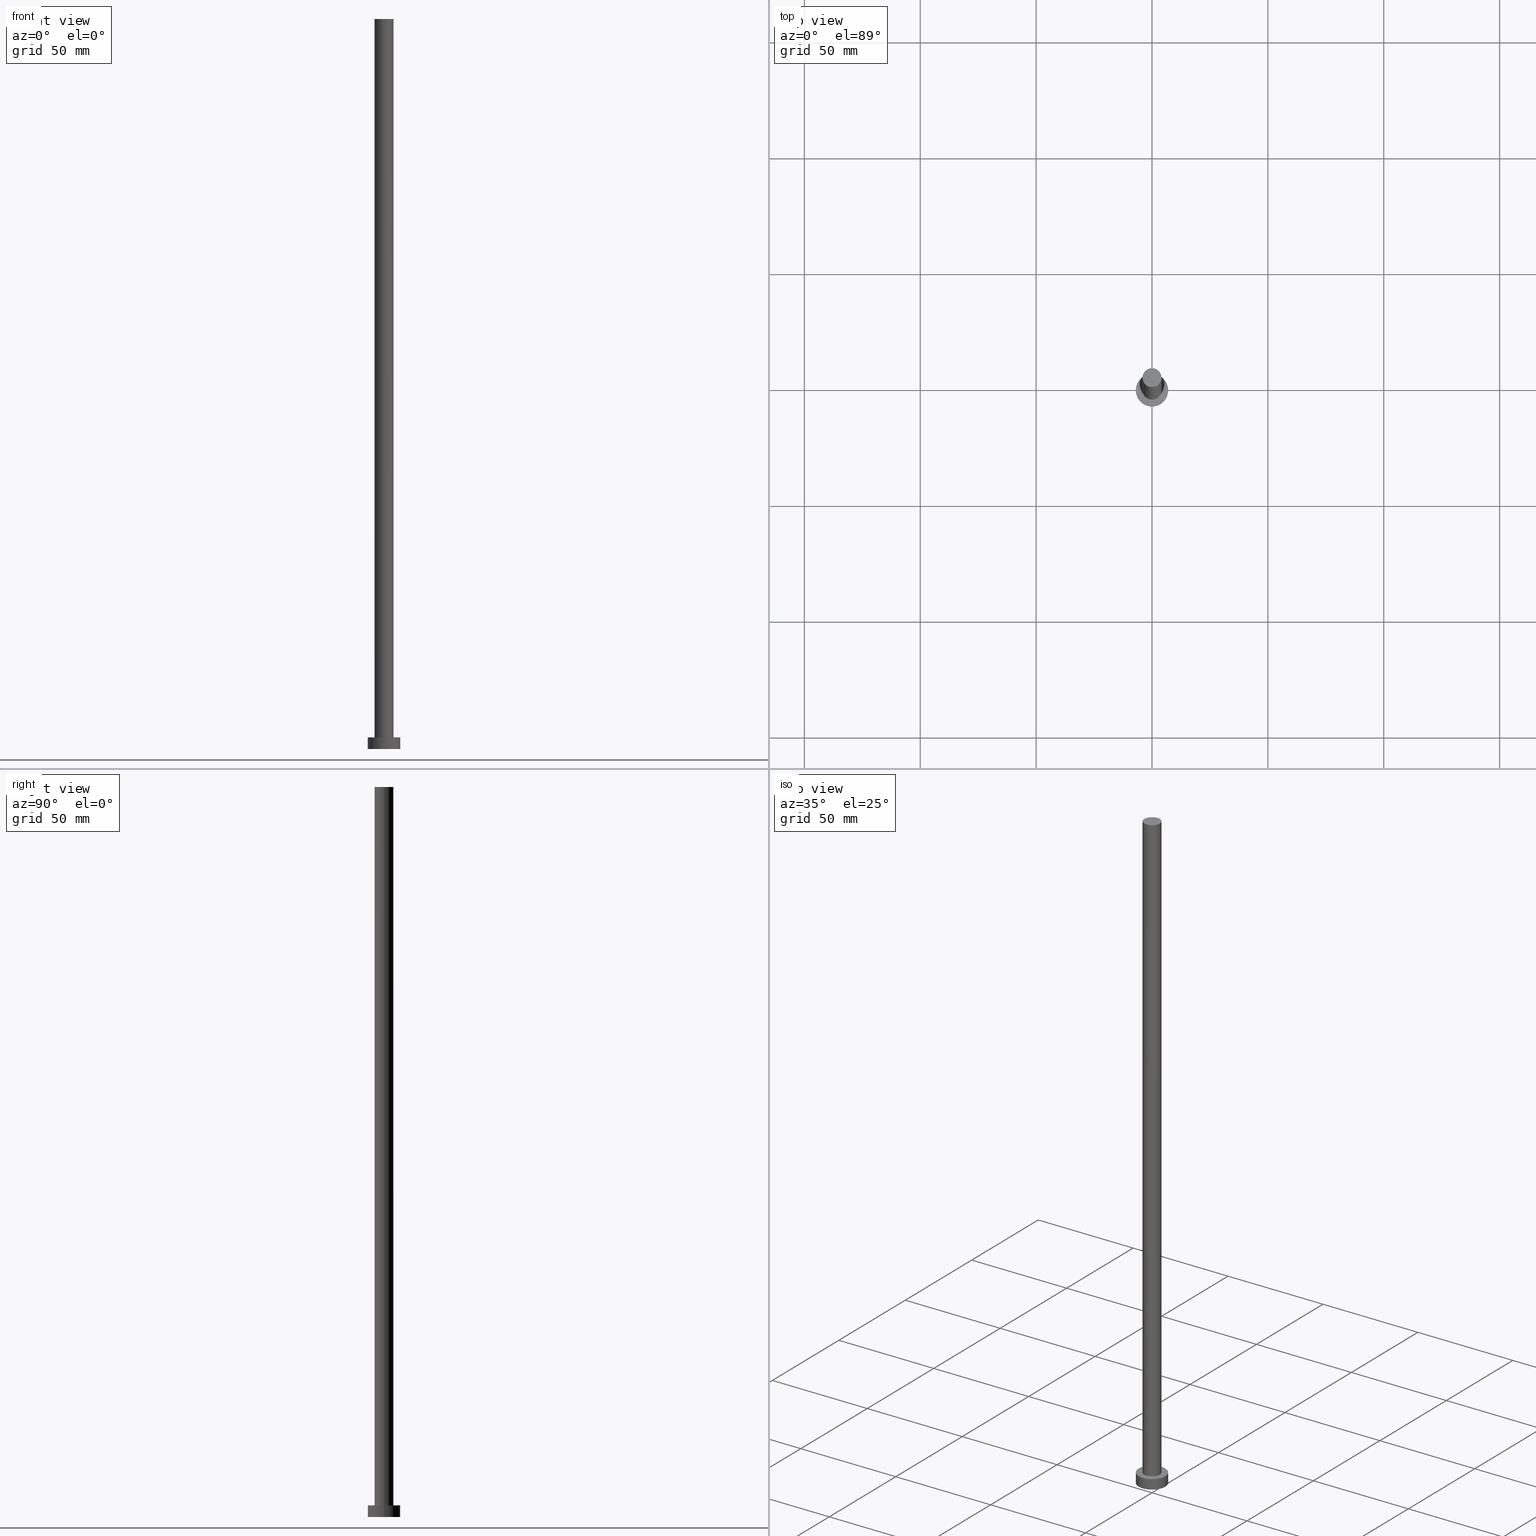
[diagram: canonical four-view strip — front | top / right | iso, engineering-drawing reading convention]
A machine part, canonical four-view strip (front | top / right | iso — engineering-drawing reading convention). The complete STEP part file that produces these views, byte-faithful:
ISO-10303-21;
HEADER;
FILE_DESCRIPTION (( 'STEP AP203' ),
    '1' );
FILE_NAME ('3f20.STEP',
    '2023-02-12T11:45:56',
    ( '' ),
    ( '' ),
    'SwSTEP 2.0',
    'SolidWorks 2019',
    '' );
FILE_SCHEMA (( 'CONFIG_CONTROL_DESIGN' ));
ENDSEC;

DATA;
#1 = AXIS2_PLACEMENT_3D ( 'NONE', #59, #176, #174 ) ;
#2 = CARTESIAN_POINT ( 'NONE',  ( 7.000000000000000000, 8.572527594031473190E-16, 5.000000000000000000 ) ) ;
#3 = EDGE_CURVE ( 'NONE', #99, #74, #75, .T. ) ;
#4 = DIRECTION ( 'NONE',  ( 0.000000000000000000, 0.000000000000000000, 1.000000000000000000 ) ) ;
#5 = DIRECTION ( 'NONE',  ( 0.000000000000000000, 0.000000000000000000, 1.000000000000000000 ) ) ;
#6 = EDGE_LOOP ( 'NONE', ( #195, #139 ) ) ;
#7 = ADVANCED_FACE ( 'NONE', ( #37 ), #94, .T. ) ;
#8 = CARTESIAN_POINT ( 'NONE',  ( 7.000000000000000000, 8.572527594031473190E-16, 0.000000000000000000 ) ) ;
#9 = CARTESIAN_POINT ( 'NONE',  ( 0.000000000000000000, 0.000000000000000000, 0.000000000000000000 ) ) ;
#10 = VERTEX_POINT ( 'NONE', #194 ) ;
#11 = DATE_TIME_ROLE ( 'creation_date' ) ;
#12 = ORIENTED_EDGE ( 'NONE', *, *, #125, .F. ) ;
#13 = DATE_AND_TIME ( #185, #17 ) ;
#14 = FACE_OUTER_BOUND ( 'NONE', #253, .T. ) ;
#15 = ADVANCED_FACE ( 'NONE', ( #212 ), #168, .T. ) ;
#16 = ORIENTED_EDGE ( 'NONE', *, *, #3, .T. ) ;
#17 = LOCAL_TIME ( 12, 45, 56.00000000000000000, #252 ) ;
#18 = DIRECTION ( 'NONE',  ( -0.000000000000000000, -0.000000000000000000, -1.000000000000000000 ) ) ;
#19 = ADVANCED_FACE ( 'NONE', ( #14 ), #32, .T. ) ;
#20 = ORIENTED_EDGE ( 'NONE', *, *, #101, .F. ) ;
#21 = CARTESIAN_POINT ( 'NONE',  ( 4.099999999999999645, 5.021051876504147385E-16, 5.000000000000000000 ) ) ;
#22 = CIRCLE ( 'NONE', #77, 4.099999999999999645 ) ;
#23 = DIRECTION ( 'NONE',  ( 1.000000000000000000, 0.000000000000000000, 0.000000000000000000 ) ) ;
#24 = APPROVAL_PERSON_ORGANIZATION ( #246, #152, #31 ) ;
#25 = CARTESIAN_POINT ( 'NONE',  ( 0.000000000000000000, 0.000000000000000000, 0.000000000000000000 ) ) ;
#26 = PLANE ( 'NONE',  #92 ) ;
#27 = CARTESIAN_POINT ( 'NONE',  ( 0.000000000000000000, 0.000000000000000000, 5.000000000000000000 ) ) ;
#28 = AXIS2_PLACEMENT_3D ( 'NONE', #25, #202, #97 ) ;
#29 = ORIENTED_EDGE ( 'NONE', *, *, #114, .T. ) ;
#30 = APPROVAL_DATE_TIME ( #71, #218 ) ;
#31 = APPROVAL_ROLE ( '' ) ;
#32 = CYLINDRICAL_SURFACE ( 'NONE', #204, 4.099999999999999645 ) ;
#33 = CC_DESIGN_APPROVAL ( #218, ( #170 ) ) ;
#34 = PERSON_AND_ORGANIZATION_ROLE ( 'creator' ) ;
#35 = ORIENTED_EDGE ( 'NONE', *, *, #112, .F. ) ;
#36 = EDGE_CURVE ( 'NONE', #67, #99, #22, .T. ) ;
#37 = FACE_OUTER_BOUND ( 'NONE', #104, .T. ) ;
#38 = AXIS2_PLACEMENT_3D ( 'NONE', #230, #107, #48 ) ;
#39 = ADVANCED_FACE ( 'NONE', ( #96 ), #84, .T. ) ;
#40 =( NAMED_UNIT ( * ) PLANE_ANGLE_UNIT ( ) SI_UNIT ( $, .RADIAN. ) );
#41 = DIRECTION ( 'NONE',  ( 0.000000000000000000, 0.000000000000000000, 1.000000000000000000 ) ) ;
#42 = LINE ( 'NONE', #172, #187 ) ;
#43 = FACE_BOUND ( 'NONE', #210, .T. ) ;
#44 = CARTESIAN_POINT ( 'NONE',  ( 0.000000000000000000, 0.000000000000000000, 5.000000000000000000 ) ) ;
#45 = ORIENTED_EDGE ( 'NONE', *, *, #146, .T. ) ;
#46 = AXIS2_PLACEMENT_3D ( 'NONE', #102, #155, #23 ) ;
#47 = CC_DESIGN_DATE_AND_TIME_ASSIGNMENT ( #209, #160, ( #103 ) ) ;
#48 = DIRECTION ( 'NONE',  ( 1.000000000000000000, 0.000000000000000000, 0.000000000000000000 ) ) ;
#49 = EDGE_LOOP ( 'NONE', ( #188, #45 ) ) ;
#50 = PERSON_AND_ORGANIZATION ( #56, #251 ) ;
#51 = CARTESIAN_POINT ( 'NONE',  ( 0.000000000000000000, 0.000000000000000000, 5.000000000000000000 ) ) ;
#52 = APPROVAL_ROLE ( '' ) ;
#53 = CIRCLE ( 'NONE', #196, 7.000000000000000000 ) ;
#54 = LOCAL_TIME ( 12, 45, 56.00000000000000000, #108 ) ;
#55 = CALENDAR_DATE ( 2023, 12, 2 ) ;
#56 = PERSON ( 'NEUR�EN�', 'NEUR�EN�', 'NEUR�EN�', ('NEUR�EN�'), ('NEUR�EN�'), ('NEUR�EN�') ) ;
#57 = DIRECTION ( 'NONE',  ( 1.000000000000000000, 0.000000000000000000, 0.000000000000000000 ) ) ;
#58 = PRODUCT ( '3f20', '3f20', '', ( #70 ) ) ;
#59 = CARTESIAN_POINT ( 'NONE',  ( 0.000000000000000000, 0.000000000000000000, 5.000000000000000000 ) ) ;
#60 = ADVANCED_FACE ( 'NONE', ( #78 ), #81, .F. ) ;
#61 = DIRECTION ( 'NONE',  ( 1.000000000000000000, 0.000000000000000000, 0.000000000000000000 ) ) ;
#62 = CYLINDRICAL_SURFACE ( 'NONE', #73, 7.000000000000000000 ) ;
#63 = CC_DESIGN_APPROVAL ( #152, ( #169 ) ) ;
#64 = ORIENTED_EDGE ( 'NONE', *, *, #3, .F. ) ;
#65 = CALENDAR_DATE ( 2023, 12, 2 ) ;
#66 =( NAMED_UNIT ( * ) SI_UNIT ( $, .STERADIAN. ) SOLID_ANGLE_UNIT ( ) );
#67 = VERTEX_POINT ( 'NONE', #135 ) ;
#68 = AXIS2_PLACEMENT_3D ( 'NONE', #224, #5, #154 ) ;
#69 = PERSON_AND_ORGANIZATION_ROLE ( 'design_owner' ) ;
#70 = MECHANICAL_CONTEXT ( 'NONE', #159, 'mechanical' ) ;
#71 = DATE_AND_TIME ( #111, #178 ) ;
#72 = DIRECTION ( 'NONE',  ( 0.000000000000000000, 0.000000000000000000, 1.000000000000000000 ) ) ;
#73 = AXIS2_PLACEMENT_3D ( 'NONE', #150, #179, #243 ) ;
#74 = VERTEX_POINT ( 'NONE', #21 ) ;
#75 = LINE ( 'NONE', #148, #213 ) ;
#76 = CIRCLE ( 'NONE', #245, 4.099999999999999645 ) ;
#77 = AXIS2_PLACEMENT_3D ( 'NONE', #255, #72, #57 ) ;
#78 = FACE_OUTER_BOUND ( 'NONE', #6, .T. ) ;
#79 = CIRCLE ( 'NONE', #46, 4.099999999999999645 ) ;
#80 = DIRECTION ( 'NONE',  ( -0.000000000000000000, -0.000000000000000000, -1.000000000000000000 ) ) ;
#81 = PLANE ( 'NONE',  #238 ) ;
#82 = ORIENTED_EDGE ( 'NONE', *, *, #217, .F. ) ;
#83 = CIRCLE ( 'NONE', #1, 7.000000000000000000 ) ;
#84 = PLANE ( 'NONE',  #151 ) ;
#85 = COORDINATED_UNIVERSAL_TIME_OFFSET ( 1, 0, .AHEAD. ) ;
#86 = APPLICATION_PROTOCOL_DEFINITION ( 'international standard', 'config_control_design', 1994, #199 ) ;
#87 = ORIENTED_EDGE ( 'NONE', *, *, #106, .T. ) ;
#88 = APPROVAL_DATE_TIME ( #13, #250 ) ;
#89 = VECTOR ( 'NONE', #222, 1000.000000000000000 ) ;
#90 = EDGE_CURVE ( 'NONE', #167, #231, #219, .T. ) ;
#91 = COORDINATED_UNIVERSAL_TIME_OFFSET ( 1, 0, .AHEAD. ) ;
#92 = AXIS2_PLACEMENT_3D ( 'NONE', #44, #100, #157 ) ;
#93 = CC_DESIGN_PERSON_AND_ORGANIZATION_ASSIGNMENT ( #216, #191, ( #103 ) ) ;
#94 = CYLINDRICAL_SURFACE ( 'NONE', #113, 7.000000000000000000 ) ;
#95 = MANIFOLD_SOLID_BREP ( 'P�idat vysunut�m3', #248 ) ;
#96 = FACE_OUTER_BOUND ( 'NONE', #49, .T. ) ;
#97 = DIRECTION ( 'NONE',  ( 1.000000000000000000, 0.000000000000000000, 0.000000000000000000 ) ) ;
#98 = CARTESIAN_POINT ( 'NONE',  ( 4.099999999999999645, 5.021051876504147385E-16, 315.0000000000000000 ) ) ;
#99 = VERTEX_POINT ( 'NONE', #98 ) ;
#100 = DIRECTION ( 'NONE',  ( 0.000000000000000000, 0.000000000000000000, 1.000000000000000000 ) ) ;
#101 = EDGE_CURVE ( 'NONE', #225, #231, #220, .T. ) ;
#102 = CARTESIAN_POINT ( 'NONE',  ( 0.000000000000000000, 0.000000000000000000, 5.000000000000000000 ) ) ;
#103 = SECURITY_CLASSIFICATION ( '', '', #189 ) ;
#104 = EDGE_LOOP ( 'NONE', ( #20, #35, #181, #161 ) ) ;
#105 = APPROVAL_ROLE ( '' ) ;
#106 = EDGE_CURVE ( 'NONE', #74, #10, #76, .T. ) ;
#107 = DIRECTION ( 'NONE',  ( 0.000000000000000000, 0.000000000000000000, 1.000000000000000000 ) ) ;
#108 = COORDINATED_UNIVERSAL_TIME_OFFSET ( 1, 0, .AHEAD. ) ;
#109 = DIRECTION ( 'NONE',  ( -0.000000000000000000, -0.000000000000000000, -1.000000000000000000 ) ) ;
#110 = UNCERTAINTY_MEASURE_WITH_UNIT (LENGTH_MEASURE( 1.000000000000000082E-05 ), #239, 'distance_accuracy_value', 'NONE');
#111 = CALENDAR_DATE ( 2023, 12, 2 ) ;
#112 = EDGE_CURVE ( 'NONE', #175, #225, #53, .T. ) ;
#113 = AXIS2_PLACEMENT_3D ( 'NONE', #51, #109, #126 ) ;
#114 = EDGE_CURVE ( 'NONE', #225, #175, #83, .T. ) ;
#115 = DIRECTION ( 'NONE',  ( 1.000000000000000000, 0.000000000000000000, -0.000000000000000000 ) ) ;
#116 = DIRECTION ( 'NONE',  ( -0.000000000000000000, -0.000000000000000000, -1.000000000000000000 ) ) ;
#117 = DIRECTION ( 'NONE',  ( 1.000000000000000000, 0.000000000000000000, 0.000000000000000000 ) ) ;
#118 = FACE_OUTER_BOUND ( 'NONE', #141, .T. ) ;
#119 = LINE ( 'NONE', #133, #89 ) ;
#120 = EDGE_LOOP ( 'NONE', ( #249, #186, #164, #82 ) ) ;
#121 = APPROVAL_STATUS ( 'not_yet_approved' ) ;
#122 = APPROVAL_PERSON_ORGANIZATION ( #226, #250, #105 ) ;
#123 = CC_DESIGN_SECURITY_CLASSIFICATION ( #103, ( #169 ) ) ;
#124 = APPROVAL_DATE_TIME ( #207, #152 ) ;
#125 = EDGE_CURVE ( 'NONE', #10, #74, #79, .T. ) ;
#126 = DIRECTION ( 'NONE',  ( -1.000000000000000000, 0.000000000000000000, 0.000000000000000000 ) ) ;
#127 = DIRECTION ( 'NONE',  ( -1.000000000000000000, 0.000000000000000000, 0.000000000000000000 ) ) ;
#128 = DATE_AND_TIME ( #55, #54 ) ;
#129 = CC_DESIGN_PERSON_AND_ORGANIZATION_ASSIGNMENT ( #214, #235, ( #170 ) ) ;
#130 = AXIS2_PLACEMENT_3D ( 'NONE', #165, #18, #127 ) ;
#131 =( GEOMETRIC_REPRESENTATION_CONTEXT ( 3 ) GLOBAL_UNCERTAINTY_ASSIGNED_CONTEXT ( ( #110 ) ) GLOBAL_UNIT_ASSIGNED_CONTEXT ( ( #239, #40, #66 ) ) REPRESENTATION_CONTEXT ( 'NONE', 'WORKASPACE' ) );
#132 = PRODUCT_RELATED_PRODUCT_CATEGORY ( 'detail', '', ( #58 ) ) ;
#133 = CARTESIAN_POINT ( 'NONE',  ( -7.000000000000000000, 0.000000000000000000, 5.000000000000000000 ) ) ;
#134 = EDGE_CURVE ( 'NONE', #67, #10, #42, .T. ) ;
#135 = CARTESIAN_POINT ( 'NONE',  ( -4.099999999999999645, 0.000000000000000000, 315.0000000000000000 ) ) ;
#136 = CARTESIAN_POINT ( 'NONE',  ( -7.000000000000000000, 0.000000000000000000, 0.000000000000000000 ) ) ;
#137 = APPROVAL_PERSON_ORGANIZATION ( #247, #218, #52 ) ;
#138 = DIRECTION ( 'NONE',  ( 0.000000000000000000, 0.000000000000000000, 1.000000000000000000 ) ) ;
#139 = ORIENTED_EDGE ( 'NONE', *, *, #183, .F. ) ;
#140 = DIRECTION ( 'NONE',  ( 0.000000000000000000, 0.000000000000000000, 1.000000000000000000 ) ) ;
#141 = EDGE_LOOP ( 'NONE', ( #223, #29 ) ) ;
#142 = CALENDAR_DATE ( 2023, 12, 2 ) ;
#143 = APPROVAL_STATUS ( 'not_yet_approved' ) ;
#144 = ORIENTED_EDGE ( 'NONE', *, *, #106, .F. ) ;
#145 = DIRECTION ( 'NONE',  ( -0.000000000000000000, -0.000000000000000000, -1.000000000000000000 ) ) ;
#146 = EDGE_CURVE ( 'NONE', #99, #67, #147, .T. ) ;
#147 = CIRCLE ( 'NONE', #68, 4.099999999999999645 ) ;
#148 = CARTESIAN_POINT ( 'NONE',  ( 4.099999999999999645, 5.021051876504147385E-16, 315.0000000000000000 ) ) ;
#149 = ADVANCED_FACE ( 'NONE', ( #244 ), #62, .T. ) ;
#150 = CARTESIAN_POINT ( 'NONE',  ( 0.000000000000000000, 0.000000000000000000, 5.000000000000000000 ) ) ;
#151 = AXIS2_PLACEMENT_3D ( 'NONE', #171, #4, #198 ) ;
#152 = APPROVAL ( #143, 'NEUR�EN�' ) ;
#153 = DIRECTION ( 'NONE',  ( 1.000000000000000000, 0.000000000000000000, 0.000000000000000000 ) ) ;
#154 = DIRECTION ( 'NONE',  ( 1.000000000000000000, 0.000000000000000000, 0.000000000000000000 ) ) ;
#155 = DIRECTION ( 'NONE',  ( 0.000000000000000000, 0.000000000000000000, 1.000000000000000000 ) ) ;
#156 = EDGE_LOOP ( 'NONE', ( #177, #16, #87, #208 ) ) ;
#157 = DIRECTION ( 'NONE',  ( 1.000000000000000000, 0.000000000000000000, -0.000000000000000000 ) ) ;
#158 = COORDINATED_UNIVERSAL_TIME_OFFSET ( 1, 0, .AHEAD. ) ;
#159 = APPLICATION_CONTEXT ( 'configuration controlled 3d designs of mechanical parts and assemblies' ) ;
#160 = DATE_TIME_ROLE ( 'classification_date' ) ;
#161 = ORIENTED_EDGE ( 'NONE', *, *, #90, .T. ) ;
#162 = SHAPE_DEFINITION_REPRESENTATION ( #227, #237 ) ;
#163 = LOCAL_TIME ( 12, 45, 56.00000000000000000, #91 ) ;
#164 = ORIENTED_EDGE ( 'NONE', *, *, #183, .T. ) ;
#165 = CARTESIAN_POINT ( 'NONE',  ( 0.000000000000000000, 0.000000000000000000, 315.0000000000000000 ) ) ;
#166 = APPLICATION_PROTOCOL_DEFINITION ( 'international standard', 'config_control_design', 1994, #159 ) ;
#167 = VERTEX_POINT ( 'NONE', #136 ) ;
#168 = CYLINDRICAL_SURFACE ( 'NONE', #130, 4.099999999999999645 ) ;
#169 = PRODUCT_DEFINITION_FORMATION_WITH_SPECIFIED_SOURCE ( 'LIBOVOLN�', '', #58, .NOT_KNOWN. ) ;
#170 = PRODUCT_DEFINITION ( 'NEZN�M�', '', #169, #205 ) ;
#171 = CARTESIAN_POINT ( 'NONE',  ( 0.000000000000000000, 0.000000000000000000, 315.0000000000000000 ) ) ;
#172 = CARTESIAN_POINT ( 'NONE',  ( -4.099999999999999645, 0.000000000000000000, 315.0000000000000000 ) ) ;
#173 = CC_DESIGN_PERSON_AND_ORGANIZATION_ASSIGNMENT ( #233, #69, ( #58 ) ) ;
#174 = DIRECTION ( 'NONE',  ( 1.000000000000000000, 0.000000000000000000, 0.000000000000000000 ) ) ;
#175 = VERTEX_POINT ( 'NONE', #221 ) ;
#176 = DIRECTION ( 'NONE',  ( 0.000000000000000000, 0.000000000000000000, 1.000000000000000000 ) ) ;
#177 = ORIENTED_EDGE ( 'NONE', *, *, #146, .F. ) ;
#178 = LOCAL_TIME ( 12, 45, 56.00000000000000000, #158 ) ;
#179 = DIRECTION ( 'NONE',  ( -0.000000000000000000, -0.000000000000000000, -1.000000000000000000 ) ) ;
#180 = CC_DESIGN_APPROVAL ( #250, ( #103 ) ) ;
#181 = ORIENTED_EDGE ( 'NONE', *, *, #217, .T. ) ;
#182 = APPROVAL_STATUS ( 'not_yet_approved' ) ;
#183 = EDGE_CURVE ( 'NONE', #231, #167, #229, .T. ) ;
#184 = ORIENTED_EDGE ( 'NONE', *, *, #125, .T. ) ;
#185 = CALENDAR_DATE ( 2023, 12, 2 ) ;
#186 = ORIENTED_EDGE ( 'NONE', *, *, #101, .T. ) ;
#187 = VECTOR ( 'NONE', #80, 1000.000000000000000 ) ;
#188 = ORIENTED_EDGE ( 'NONE', *, *, #36, .T. ) ;
#189 = SECURITY_CLASSIFICATION_LEVEL ( 'unclassified' ) ;
#190 = DIRECTION ( 'NONE',  ( -1.000000000000000000, 0.000000000000000000, 0.000000000000000000 ) ) ;
#191 = PERSON_AND_ORGANIZATION_ROLE ( 'classification_officer' ) ;
#192 = ORIENTED_EDGE ( 'NONE', *, *, #36, .F. ) ;
#193 = AXIS2_PLACEMENT_3D ( 'NONE', #9, #138, #117 ) ;
#194 = CARTESIAN_POINT ( 'NONE',  ( -4.099999999999999645, 0.000000000000000000, 5.000000000000000000 ) ) ;
#195 = ORIENTED_EDGE ( 'NONE', *, *, #90, .F. ) ;
#196 = AXIS2_PLACEMENT_3D ( 'NONE', #197, #242, #61 ) ;
#197 = CARTESIAN_POINT ( 'NONE',  ( 0.000000000000000000, 0.000000000000000000, 5.000000000000000000 ) ) ;
#198 = DIRECTION ( 'NONE',  ( 1.000000000000000000, 0.000000000000000000, -0.000000000000000000 ) ) ;
#199 = APPLICATION_CONTEXT ( 'configuration controlled 3d designs of mechanical parts and assemblies' ) ;
#200 = CARTESIAN_POINT ( 'NONE',  ( 0.000000000000000000, 0.000000000000000000, 0.000000000000000000 ) ) ;
#201 = CARTESIAN_POINT ( 'NONE',  ( 7.000000000000000000, 8.572527594031473190E-16, 5.000000000000000000 ) ) ;
#202 = DIRECTION ( 'NONE',  ( 0.000000000000000000, 0.000000000000000000, 1.000000000000000000 ) ) ;
#203 = ORIENTED_EDGE ( 'NONE', *, *, #134, .T. ) ;
#204 = AXIS2_PLACEMENT_3D ( 'NONE', #234, #215, #190 ) ;
#205 = DESIGN_CONTEXT ( 'detailed design', #199, 'design' ) ;
#206 = CC_DESIGN_PERSON_AND_ORGANIZATION_ASSIGNMENT ( #211, #254, ( #169 ) ) ;
#207 = DATE_AND_TIME ( #65, #163 ) ;
#208 = ORIENTED_EDGE ( 'NONE', *, *, #134, .F. ) ;
#209 = DATE_AND_TIME ( #142, #240 ) ;
#210 = EDGE_LOOP ( 'NONE', ( #12, #144 ) ) ;
#211 = PERSON_AND_ORGANIZATION ( #56, #251 ) ;
#212 = FACE_OUTER_BOUND ( 'NONE', #156, .T. ) ;
#213 = VECTOR ( 'NONE', #145, 1000.000000000000000 ) ;
#214 = PERSON_AND_ORGANIZATION ( #56, #251 ) ;
#215 = DIRECTION ( 'NONE',  ( -0.000000000000000000, -0.000000000000000000, -1.000000000000000000 ) ) ;
#216 = PERSON_AND_ORGANIZATION ( #56, #251 ) ;
#217 = EDGE_CURVE ( 'NONE', #175, #167, #119, .T. ) ;
#218 = APPROVAL ( #182, 'NEUR�EN�' ) ;
#219 = CIRCLE ( 'NONE', #28, 7.000000000000000000 ) ;
#220 = LINE ( 'NONE', #2, #228 ) ;
#221 = CARTESIAN_POINT ( 'NONE',  ( -7.000000000000000000, 0.000000000000000000, 5.000000000000000000 ) ) ;
#222 = DIRECTION ( 'NONE',  ( -0.000000000000000000, -0.000000000000000000, -1.000000000000000000 ) ) ;
#223 = ORIENTED_EDGE ( 'NONE', *, *, #112, .T. ) ;
#224 = CARTESIAN_POINT ( 'NONE',  ( 0.000000000000000000, 0.000000000000000000, 315.0000000000000000 ) ) ;
#225 = VERTEX_POINT ( 'NONE', #201 ) ;
#226 = PERSON_AND_ORGANIZATION ( #56, #251 ) ;
#227 = PRODUCT_DEFINITION_SHAPE ( 'NONE', 'NONE',  #170 ) ;
#228 = VECTOR ( 'NONE', #116, 1000.000000000000000 ) ;
#229 = CIRCLE ( 'NONE', #193, 7.000000000000000000 ) ;
#230 = CARTESIAN_POINT ( 'NONE',  ( 0.000000000000000000, 0.000000000000000000, 0.000000000000000000 ) ) ;
#231 = VERTEX_POINT ( 'NONE', #8 ) ;
#232 = ADVANCED_FACE ( 'NONE', ( #43, #118 ), #26, .T. ) ;
#233 = PERSON_AND_ORGANIZATION ( #56, #251 ) ;
#234 = CARTESIAN_POINT ( 'NONE',  ( 0.000000000000000000, 0.000000000000000000, 315.0000000000000000 ) ) ;
#235 = PERSON_AND_ORGANIZATION_ROLE ( 'creator' ) ;
#236 = CC_DESIGN_DATE_AND_TIME_ASSIGNMENT ( #128, #11, ( #170 ) ) ;
#237 = ADVANCED_BREP_SHAPE_REPRESENTATION ( '3f20', ( #95, #38 ), #131 ) ;
#238 = AXIS2_PLACEMENT_3D ( 'NONE', #200, #41, #115 ) ;
#239 =( LENGTH_UNIT ( ) NAMED_UNIT ( * ) SI_UNIT ( .MILLI., .METRE. ) );
#240 = LOCAL_TIME ( 12, 45, 56.00000000000000000, #85 ) ;
#241 = CC_DESIGN_PERSON_AND_ORGANIZATION_ASSIGNMENT ( #50, #34, ( #169 ) ) ;
#242 = DIRECTION ( 'NONE',  ( 0.000000000000000000, 0.000000000000000000, 1.000000000000000000 ) ) ;
#243 = DIRECTION ( 'NONE',  ( -1.000000000000000000, 0.000000000000000000, 0.000000000000000000 ) ) ;
#244 = FACE_OUTER_BOUND ( 'NONE', #120, .T. ) ;
#245 = AXIS2_PLACEMENT_3D ( 'NONE', #27, #140, #153 ) ;
#246 = PERSON_AND_ORGANIZATION ( #56, #251 ) ;
#247 = PERSON_AND_ORGANIZATION ( #56, #251 ) ;
#248 = CLOSED_SHELL ( 'NONE', ( #15, #149, #7, #232, #60, #19, #39 ) ) ;
#249 = ORIENTED_EDGE ( 'NONE', *, *, #114, .F. ) ;
#250 = APPROVAL ( #121, 'NEUR�EN�' ) ;
#251 = ORGANIZATION ( 'NEUR�EN�', 'NEUR�EN�', '' ) ;
#252 = COORDINATED_UNIVERSAL_TIME_OFFSET ( 1, 0, .AHEAD. ) ;
#253 = EDGE_LOOP ( 'NONE', ( #64, #192, #203, #184 ) ) ;
#254 = PERSON_AND_ORGANIZATION_ROLE ( 'design_supplier' ) ;
#255 = CARTESIAN_POINT ( 'NONE',  ( 0.000000000000000000, 0.000000000000000000, 315.0000000000000000 ) ) ;
ENDSEC;
END-ISO-10303-21;
